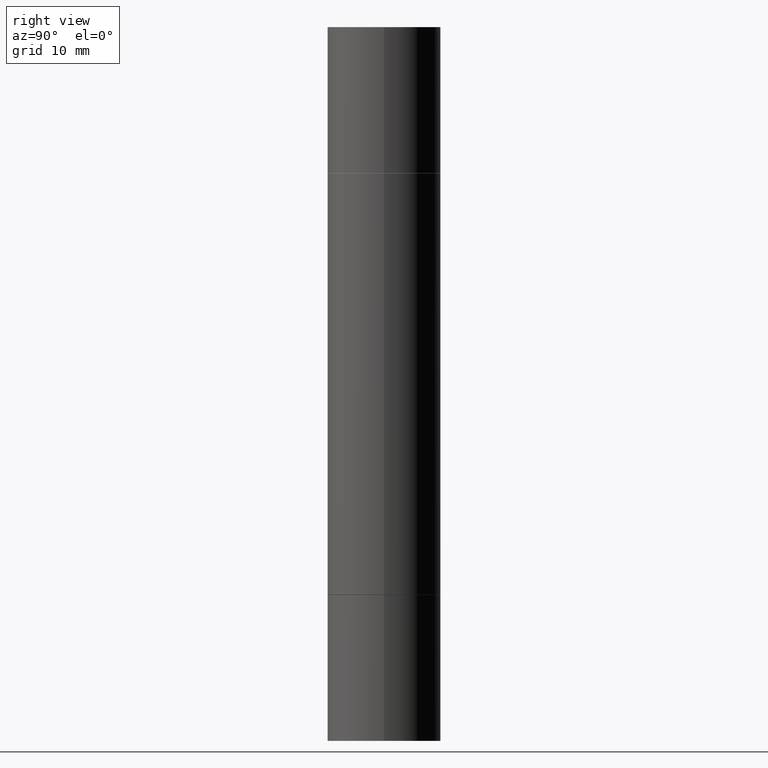
[diagram: clean part render]
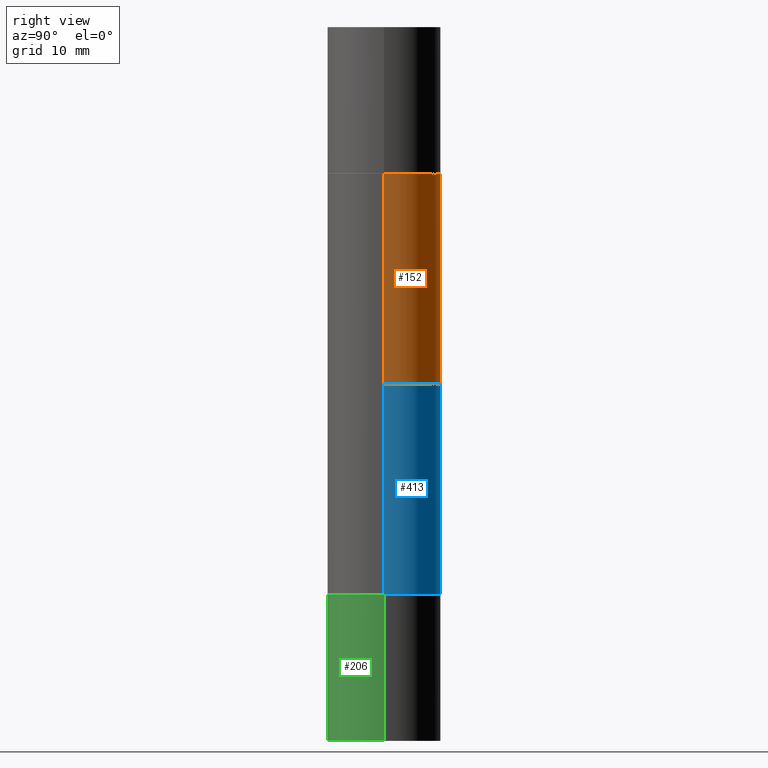
[diagram: same view with three faces highlighted in distinct colors, each labeled with its STEP entity id]
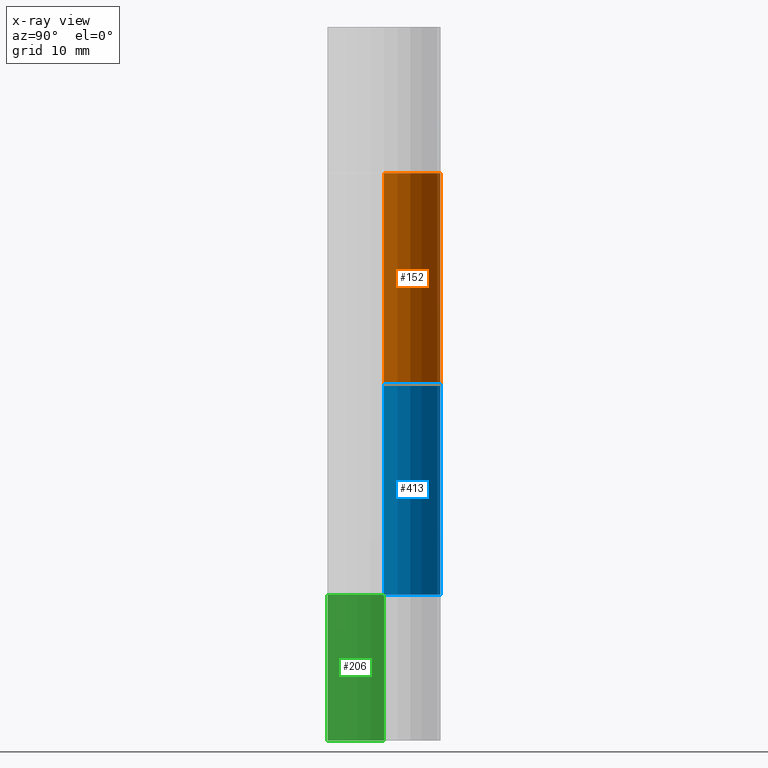
[diagram: x-ray of the same camera — body ghosted, the three highlighted faces saturated]
A machine part, right view with three faces highlighted in distinct colors.
The next image is the same camera in x-ray (body ghosted, the three faces saturated) — at least one of them is partly hidden behind the body in this view.
Their STEP definitions:

[orange] entity #152 — the highlighted cylindrical surface (partial cylindrical patch) has radius 5.5562 mm, axis along (-0, -0, -1).
#28 = CARTESIAN_POINT ( 'NONE',  ( 0.2187499999999999445, -3.492082912473170057E-15, -0.5629999999999997229 ) ) ;
#54 = AXIS2_PLACEMENT_3D ( 'NONE', #656, #652, #241 ) ;
#61 = DIRECTION ( 'NONE',  ( -2.445468806185136877E-29, -3.492890411551753071E-15, -1.000000000000000000 ) ) ;
#69 = DIRECTION ( 'NONE',  ( 1.000000000000000000, -6.982962677686266711E-15, 0.000000000000000000 ) ) ;
#76 = CARTESIAN_POINT ( 'NONE',  ( -0.2187499999999998612, -1.881939396806789345E-15, -1.374999999999999778 ) ) ;
#94 = EDGE_LOOP ( 'NONE', ( #103, #503, #679, #469 ) ) ;
#99 = VERTEX_POINT ( 'NONE', #28 ) ;
#103 = ORIENTED_EDGE ( 'NONE', *, *, #666, .F. ) ;
#134 = LINE ( 'NONE', #289, #235 ) ;
#152 = ADVANCED_FACE ( 'NONE', ( #300 ), #514, .T. ) ;
#195 = EDGE_CURVE ( 'NONE', #626, #335, #523, .T. ) ;
#232 = AXIS2_PLACEMENT_3D ( 'NONE', #262, #431, #680 ) ;
#235 = VECTOR ( 'NONE', #282, 39.37007874015748143 ) ;
#237 = CIRCLE ( 'NONE', #408, 0.2187499999999999445 ) ;
#241 = DIRECTION ( 'NONE',  ( 1.000000000000000000, -6.982962677686267499E-15, 0.000000000000000000 ) ) ;
#262 = CARTESIAN_POINT ( 'NONE',  ( 3.362519608504561700E-29, -4.800786840909324141E-15, -1.374999999999999778 ) ) ;
#282 = DIRECTION ( 'NONE',  ( -2.445468806185136877E-29, -3.492890411551753071E-15, -1.000000000000000000 ) ) ;
#289 = CARTESIAN_POINT ( 'NONE',  ( -0.2187499999999998612, -8.102777219780461591E-15, -2.749999999999999556 ) ) ;
#300 = FACE_OUTER_BOUND ( 'NONE', #94, .T. ) ;
#329 = CARTESIAN_POINT ( 'NONE',  ( 0.2187499999999998612, -4.910196419563181534E-15, -1.374999999999999778 ) ) ;
#335 = VERTEX_POINT ( 'NONE', #329 ) ;
#350 = VECTOR ( 'NONE', #61, 39.37007874015748143 ) ;
#388 = CARTESIAN_POINT ( 'NONE',  ( -0.2187499999999999445, -4.638258897167772766E-16, -0.5629999999999997229 ) ) ;
#408 = AXIS2_PLACEMENT_3D ( 'NONE', #653, #547, #69 ) ;
#431 = DIRECTION ( 'NONE',  ( -0.000000000000000000, -3.492185875197449130E-15, -1.000000000000000000 ) ) ;
#469 = ORIENTED_EDGE ( 'NONE', *, *, #195, .F. ) ;
#503 = ORIENTED_EDGE ( 'NONE', *, *, #657, .F. ) ;
#514 = CYLINDRICAL_SURFACE ( 'NONE', #54, 0.2187499999999998612 ) ;
#523 = CIRCLE ( 'NONE', #232, 0.2187499999999998612 ) ;
#541 = CARTESIAN_POINT ( 'NONE',  ( 0.2187499999999998612, -1.113103424253685260E-14, -2.749999999999999556 ) ) ;
#547 = DIRECTION ( 'NONE',  ( 2.445468806185136597E-29, 3.492890411551752677E-15, 1.000000000000000000 ) ) ;
#551 = EDGE_CURVE ( 'NONE', #99, #335, #571, .T. ) ;
#571 = LINE ( 'NONE', #541, #350 ) ;
#580 = VERTEX_POINT ( 'NONE', #388 ) ;
#626 = VERTEX_POINT ( 'NONE', #76 ) ;
#652 = DIRECTION ( 'NONE',  ( -2.445468806185136597E-29, -3.492890411551752677E-15, -1.000000000000000000 ) ) ;
#653 = CARTESIAN_POINT ( 'NONE',  ( 5.348240279126892383E-29, -1.964559826729300003E-15, -0.5629999999999997229 ) ) ;
#656 = CARTESIAN_POINT ( 'NONE',  ( 0.000000000000000000, -9.603511156792982543E-15, -2.749999999999999556 ) ) ;
#657 = EDGE_CURVE ( 'NONE', #99, #580, #237, .T. ) ;
#666 = EDGE_CURVE ( 'NONE', #580, #626, #134, .T. ) ;
#679 = ORIENTED_EDGE ( 'NONE', *, *, #551, .T. ) ;
#680 = DIRECTION ( 'NONE',  ( 0.000000000000000000, 1.000000000000000000, -3.746534391310991923E-15 ) ) ;

[blue] entity #413 — the highlighted cylindrical surface (partial cylindrical patch) has radius 5.5562 mm, axis along (-0, -0, -1).
#49 = CARTESIAN_POINT ( 'NONE',  ( 5.348240279126892383E-29, -7.635869688049957955E-15, -2.186999999999999833 ) ) ;
#56 = VECTOR ( 'NONE', #526, 39.37007874015748143 ) ;
#80 = CIRCLE ( 'NONE', #639, 0.2187499999999999445 ) ;
#98 = CARTESIAN_POINT ( 'NONE',  ( 0.000000000000000000, -9.603511156792982543E-15, -2.749999999999999556 ) ) ;
#100 = LINE ( 'NONE', #314, #56 ) ;
#101 = AXIS2_PLACEMENT_3D ( 'NONE', #98, #366, #113 ) ;
#113 = DIRECTION ( 'NONE',  ( 1.000000000000000000, -6.982962677686267499E-15, 0.000000000000000000 ) ) ;
#167 = ORIENTED_EDGE ( 'NONE', *, *, #529, .T. ) ;
#168 = CARTESIAN_POINT ( 'NONE',  ( 5.348240279126892383E-29, -1.964559826729300003E-15, -0.5629999999999997229 ) ) ;
#184 = VECTOR ( 'NONE', #556, 39.37007874015748143 ) ;
#190 = AXIS2_PLACEMENT_3D ( 'NONE', #168, #537, #525 ) ;
#233 = CIRCLE ( 'NONE', #190, 0.2187499999999999445 ) ;
#246 = CARTESIAN_POINT ( 'NONE',  ( 0.2187499999999999445, -9.163392773793829586E-15, -2.186999999999999833 ) ) ;
#261 = DIRECTION ( 'NONE',  ( 1.000000000000000000, -6.982962677686269077E-15, 0.000000000000000000 ) ) ;
#278 = VERTEX_POINT ( 'NONE', #246 ) ;
#314 = CARTESIAN_POINT ( 'NONE',  ( -0.2187499999999998612, -8.102777219780461591E-15, -2.749999999999999556 ) ) ;
#316 = CYLINDRICAL_SURFACE ( 'NONE', #101, 0.2187499999999998612 ) ;
#322 = EDGE_CURVE ( 'NONE', #380, #671, #100, .T. ) ;
#343 = CARTESIAN_POINT ( 'NONE',  ( 0.2187499999999998612, -1.113103424253685260E-14, -2.749999999999999556 ) ) ;
#366 = DIRECTION ( 'NONE',  ( -2.445468806185136597E-29, -3.492890411551752677E-15, -1.000000000000000000 ) ) ;
#380 = VERTEX_POINT ( 'NONE', #384 ) ;
#384 = CARTESIAN_POINT ( 'NONE',  ( -0.2187499999999999445, -4.638258897167772766E-16, -0.5629999999999997229 ) ) ;
#412 = ORIENTED_EDGE ( 'NONE', *, *, #417, .F. ) ;
#413 = ADVANCED_FACE ( 'NONE', ( #576 ), #316, .T. ) ;
#415 = ORIENTED_EDGE ( 'NONE', *, *, #643, .T. ) ;
#417 = EDGE_CURVE ( 'NONE', #535, #380, #233, .T. ) ;
#480 = CARTESIAN_POINT ( 'NONE',  ( 0.2187499999999999445, -3.492082912473170057E-15, -0.5629999999999997229 ) ) ;
#501 = CARTESIAN_POINT ( 'NONE',  ( -0.2187499999999999445, -3.300052903896800034E-15, -2.186999999999999833 ) ) ;
#521 = EDGE_LOOP ( 'NONE', ( #574, #412, #415, #167 ) ) ;
#525 = DIRECTION ( 'NONE',  ( 1.000000000000000000, -6.982962677686266711E-15, 0.000000000000000000 ) ) ;
#526 = DIRECTION ( 'NONE',  ( -2.445468806185136877E-29, -3.492890411551753071E-15, -1.000000000000000000 ) ) ;
#529 = EDGE_CURVE ( 'NONE', #278, #671, #80, .T. ) ;
#535 = VERTEX_POINT ( 'NONE', #480 ) ;
#537 = DIRECTION ( 'NONE',  ( 2.445468806185136597E-29, 3.492890411551752677E-15, 1.000000000000000000 ) ) ;
#556 = DIRECTION ( 'NONE',  ( -2.445468806185136877E-29, -3.492890411551753071E-15, -1.000000000000000000 ) ) ;
#574 = ORIENTED_EDGE ( 'NONE', *, *, #322, .F. ) ;
#576 = FACE_OUTER_BOUND ( 'NONE', #521, .T. ) ;
#595 = LINE ( 'NONE', #343, #184 ) ;
#631 = DIRECTION ( 'NONE',  ( -2.445468806185136597E-29, 3.491481338843145583E-15, 1.000000000000000000 ) ) ;
#639 = AXIS2_PLACEMENT_3D ( 'NONE', #49, #631, #261 ) ;
#643 = EDGE_CURVE ( 'NONE', #535, #278, #595, .T. ) ;
#671 = VERTEX_POINT ( 'NONE', #501 ) ;

[green] entity #206 — the highlighted cylindrical surface (partial cylindrical patch) has radius 5.5562 mm, axis along (-0, 0, 1).
#4 = ORIENTED_EDGE ( 'NONE', *, *, #633, .T. ) ;
#36 = CARTESIAN_POINT ( 'NONE',  ( 0.000000000000000000, 0.000000000000000000, 0.000000000000000000 ) ) ;
#59 = CARTESIAN_POINT ( 'NONE',  ( -0.2187500000000000000, -7.066155191128507043E-15, -2.187999999999999723 ) ) ;
#70 = CIRCLE ( 'NONE', #352, 0.2187500000000000000 ) ;
#74 = EDGE_CURVE ( 'NONE', #260, #249, #265, .T. ) ;
#102 = VECTOR ( 'NONE', #650, 39.37007874015748143 ) ;
#135 = DIRECTION ( 'NONE',  ( 1.000000000000000000, -6.982962677686262766E-15, 0.000000000000000000 ) ) ;
#144 = DIRECTION ( 'NONE',  ( -2.445468806185136597E-29, 3.491481338843145583E-15, 1.000000000000000000 ) ) ;
#164 = EDGE_LOOP ( 'NONE', ( #207, #4, #218, #615 ) ) ;
#183 = DIRECTION ( 'NONE',  ( -2.445468806185136597E-29, 3.491481338843145583E-15, 1.000000000000000000 ) ) ;
#206 = ADVANCED_FACE ( 'NONE', ( #376 ), #667, .T. ) ;
#207 = ORIENTED_EDGE ( 'NONE', *, *, #356, .F. ) ;
#218 = ORIENTED_EDGE ( 'NONE', *, *, #676, .T. ) ;
#220 = CARTESIAN_POINT ( 'NONE',  ( -0.2187500000000000000, 1.554312234475219157E-15, -1.076017050993260622E-29 ) ) ;
#223 = VECTOR ( 'NONE', #445, 39.37007874015748143 ) ;
#229 = CARTESIAN_POINT ( 'NONE',  ( 0.2187500000000000000, -1.527523085743870843E-15, 1.066663669705360885E-29 ) ) ;
#234 = CARTESIAN_POINT ( 'NONE',  ( 5.350685747933077986E-29, -7.639361169388800962E-15, -2.187999999999999723 ) ) ;
#249 = VERTEX_POINT ( 'NONE', #565 ) ;
#257 = CARTESIAN_POINT ( 'NONE',  ( -0.2187500000000000000, -7.066155191128507043E-15, -2.750000000000000000 ) ) ;
#260 = VERTEX_POINT ( 'NONE', #59 ) ;
#265 = CIRCLE ( 'NONE', #470, 0.2187500000000000000 ) ;
#294 = DIRECTION ( 'NONE',  ( 1.000000000000000000, -6.982962677686262766E-15, 0.000000000000000000 ) ) ;
#346 = CARTESIAN_POINT ( 'NONE',  ( 6.725039217009124520E-29, -9.601573681818649859E-15, -2.750000000000000000 ) ) ;
#352 = AXIS2_PLACEMENT_3D ( 'NONE', #346, #183, #294 ) ;
#356 = EDGE_CURVE ( 'NONE', #429, #260, #545, .T. ) ;
#376 = FACE_OUTER_BOUND ( 'NONE', #164, .T. ) ;
#397 = AXIS2_PLACEMENT_3D ( 'NONE', #36, #144, #582 ) ;
#429 = VERTEX_POINT ( 'NONE', #257 ) ;
#445 = DIRECTION ( 'NONE',  ( -2.445468806185136877E-29, 3.491481338843145188E-15, 1.000000000000000000 ) ) ;
#447 = CARTESIAN_POINT ( 'NONE',  ( 0.2187500000000000000, -1.112909676756251991E-14, -2.750000000000000000 ) ) ;
#470 = AXIS2_PLACEMENT_3D ( 'NONE', #234, #601, #135 ) ;
#498 = LINE ( 'NONE', #229, #102 ) ;
#545 = LINE ( 'NONE', #220, #223 ) ;
#565 = CARTESIAN_POINT ( 'NONE',  ( 0.2187500000000000000, -9.166884255132671016E-15, -2.187999999999999723 ) ) ;
#582 = DIRECTION ( 'NONE',  ( 1.000000000000000000, -6.982962677686266711E-15, 4.876176775795935232E-29 ) ) ;
#591 = VERTEX_POINT ( 'NONE', #447 ) ;
#601 = DIRECTION ( 'NONE',  ( -2.445468806185136597E-29, 3.491481338843145583E-15, 1.000000000000000000 ) ) ;
#615 = ORIENTED_EDGE ( 'NONE', *, *, #74, .F. ) ;
#633 = EDGE_CURVE ( 'NONE', #429, #591, #70, .T. ) ;
#650 = DIRECTION ( 'NONE',  ( -2.445468806185136877E-29, 3.491481338843145188E-15, 1.000000000000000000 ) ) ;
#667 = CYLINDRICAL_SURFACE ( 'NONE', #397, 0.2187500000000000000 ) ;
#676 = EDGE_CURVE ( 'NONE', #591, #249, #498, .T. ) ;